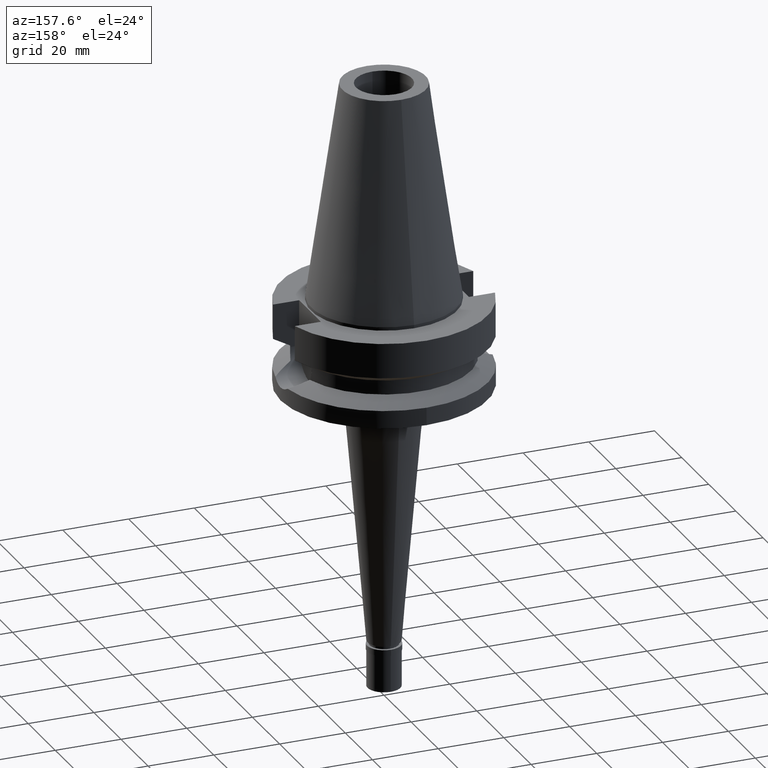
[diagram: clean part render]
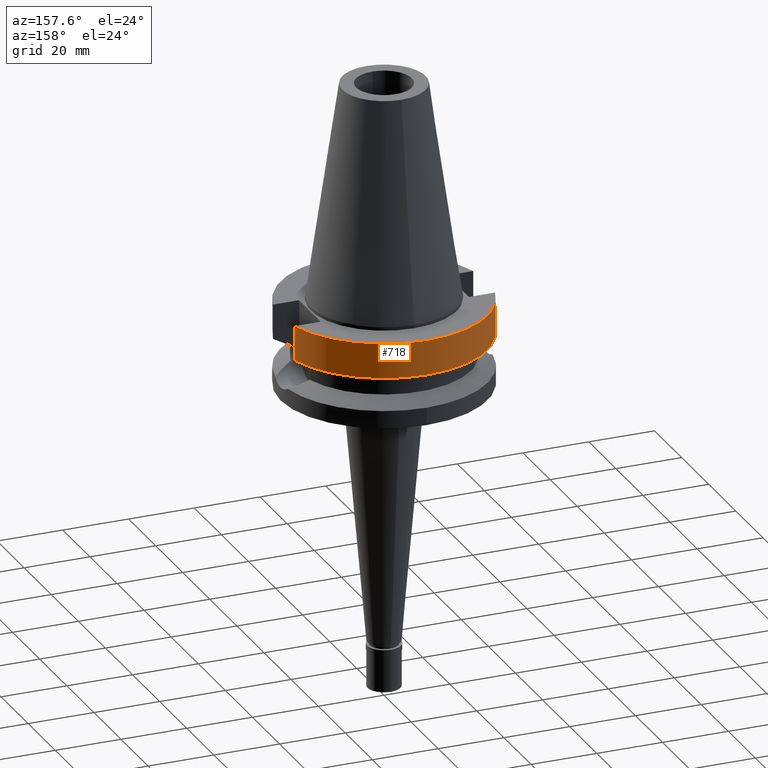
[diagram: same view with one face highlighted and labeled with its STEP entity id]
A machine part, auxiliary view. The second image highlights one B-rep face of the part: STEP entity #718.
In plain terms, the highlighted cylindrical surface (partial cylindrical patch) has radius 31.5 mm, axis along (0, 0, -1).
Its self-contained STEP definition (entity closure, byte-faithful):
#88 = VERTEX_POINT ( 'NONE', #249 ) ;
#106 = EDGE_CURVE ( 'NONE', #1868, #2188, #140, .T. ) ;
#140 = CIRCLE ( 'NONE', #2454, 31.50000000000000000 ) ;
#148 = CARTESIAN_POINT ( 'NONE',  ( 0.0000000000000000000, 2.136824967491999859E-14, -1.000000000000000000 ) ) ;
#249 = CARTESIAN_POINT ( 'NONE',  ( -30.45402272279000044, 8.050000000000000711, -1.000000000000000000 ) ) ;
#369 = CARTESIAN_POINT ( 'NONE',  ( -30.45402162745000041, 8.050004143767999665, -11.56546832737000052 ) ) ;
#395 = CARTESIAN_POINT ( 'NONE',  ( 0.0000000000000000000, 2.136824967491999859E-14, 74.48499999999999943 ) ) ;
#476 = CARTESIAN_POINT ( 'NONE',  ( 30.45402272279000044, 8.050000000000000711, -1.000000000000000000 ) ) ;
#478 = AXIS2_PLACEMENT_3D ( 'NONE', #395, #2692, #1977 ) ;
#567 = LINE ( 'NONE', #1642, #2669 ) ;
#569 = DIRECTION ( 'NONE',  ( 0.0000000000000000000, 1.000000000000000000, 0.0000000000000000000 ) ) ;
#610 = ORIENTED_EDGE ( 'NONE', *, *, #2575, .F. ) ;
#718 = ADVANCED_FACE ( 'NONE', ( #796 ), #2412, .T. ) ;
#796 = FACE_OUTER_BOUND ( 'NONE', #2743, .T. ) ;
#897 = VERTEX_POINT ( 'NONE', #476 ) ;
#1208 = LINE ( 'NONE', #2349, #1705 ) ;
#1380 = AXIS2_PLACEMENT_3D ( 'NONE', #148, #2677, #569 ) ;
#1424 = ORIENTED_EDGE ( 'NONE', *, *, #2243, .T. ) ;
#1642 = CARTESIAN_POINT ( 'NONE',  ( 30.45402291369999759, 8.049999277743001613, -11.56551215788999976 ) ) ;
#1671 = DIRECTION ( 'NONE',  ( 0.0000000000000000000, 0.0000000000000000000, 1.000000000000000000 ) ) ;
#1705 = VECTOR ( 'NONE', #1912, 1000.000000000000114 ) ;
#1713 = ORIENTED_EDGE ( 'NONE', *, *, #106, .T. ) ;
#1750 = ORIENTED_EDGE ( 'NONE', *, *, #2007, .F. ) ;
#1868 = VERTEX_POINT ( 'NONE', #1935 ) ;
#1880 = CARTESIAN_POINT ( 'NONE',  ( 0.0000000000000000000, 1.065333950388000029E-14, -11.56550565266999975 ) ) ;
#1912 = DIRECTION ( 'NONE',  ( 1.036712844987017520E-07, 3.921991745113068853E-07, -0.9999999999999177325 ) ) ;
#1935 = CARTESIAN_POINT ( 'NONE',  ( 30.45402291369999759, 8.049999277743001613, -11.56551215788999976 ) ) ;
#1977 = DIRECTION ( 'NONE',  ( 0.0000000000000000000, -1.000000000000000000, 0.0000000000000000000 ) ) ;
#2007 = EDGE_CURVE ( 'NONE', #1868, #897, #567, .T. ) ;
#2083 = DIRECTION ( 'NONE',  ( 0.0000000000000000000, 1.000000000000000000, 0.0000000000000000000 ) ) ;
#2188 = VERTEX_POINT ( 'NONE', #369 ) ;
#2243 = EDGE_CURVE ( 'NONE', #88, #897, #2722, .T. ) ;
#2349 = CARTESIAN_POINT ( 'NONE',  ( -30.45402272279000044, 8.050000000000000711, -1.000000000000000000 ) ) ;
#2412 = CYLINDRICAL_SURFACE ( 'NONE', #478, 31.50000000000000000 ) ;
#2454 = AXIS2_PLACEMENT_3D ( 'NONE', #1880, #1671, #2083 ) ;
#2575 = EDGE_CURVE ( 'NONE', #88, #2188, #1208, .T. ) ;
#2669 = VECTOR ( 'NONE', #2746, 1000.000000000000114 ) ;
#2677 = DIRECTION ( 'NONE',  ( 0.0000000000000000000, 0.0000000000000000000, -1.000000000000000000 ) ) ;
#2692 = DIRECTION ( 'NONE',  ( 0.0000000000000000000, 0.0000000000000000000, -1.000000000000000000 ) ) ;
#2722 = CIRCLE ( 'NONE', #1380, 31.50000000000000000 ) ;
#2743 = EDGE_LOOP ( 'NONE', ( #610, #1424, #1750, #1713 ) ) ;
#2746 = DIRECTION ( 'NONE',  ( -1.806970338729990605E-08, 6.835988569081961502E-08, 0.9999999999999974465 ) ) ;